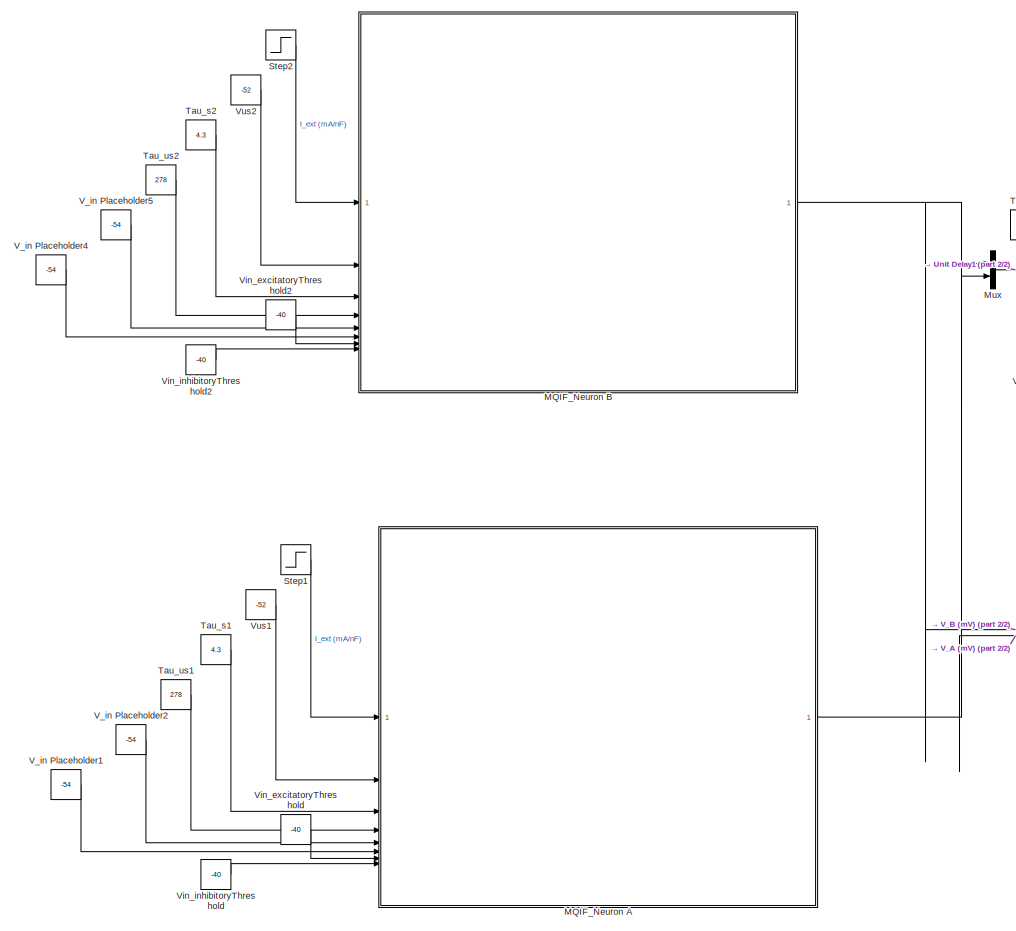
[diagram: root canvas - part 1/2, left side, full height]
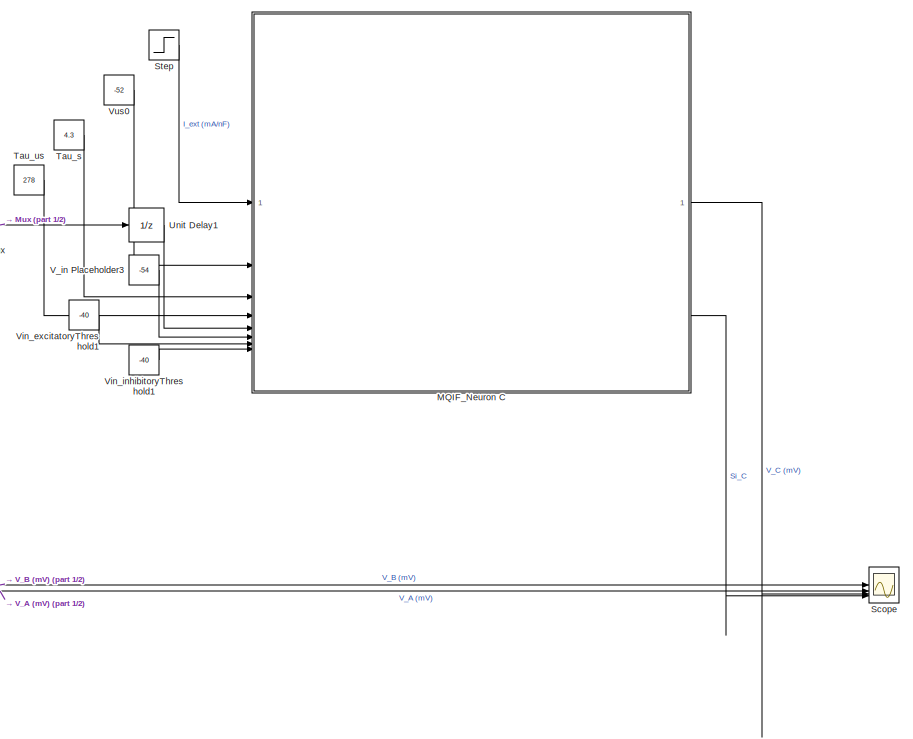
[diagram: root canvas - part 2/2, right side, full height]
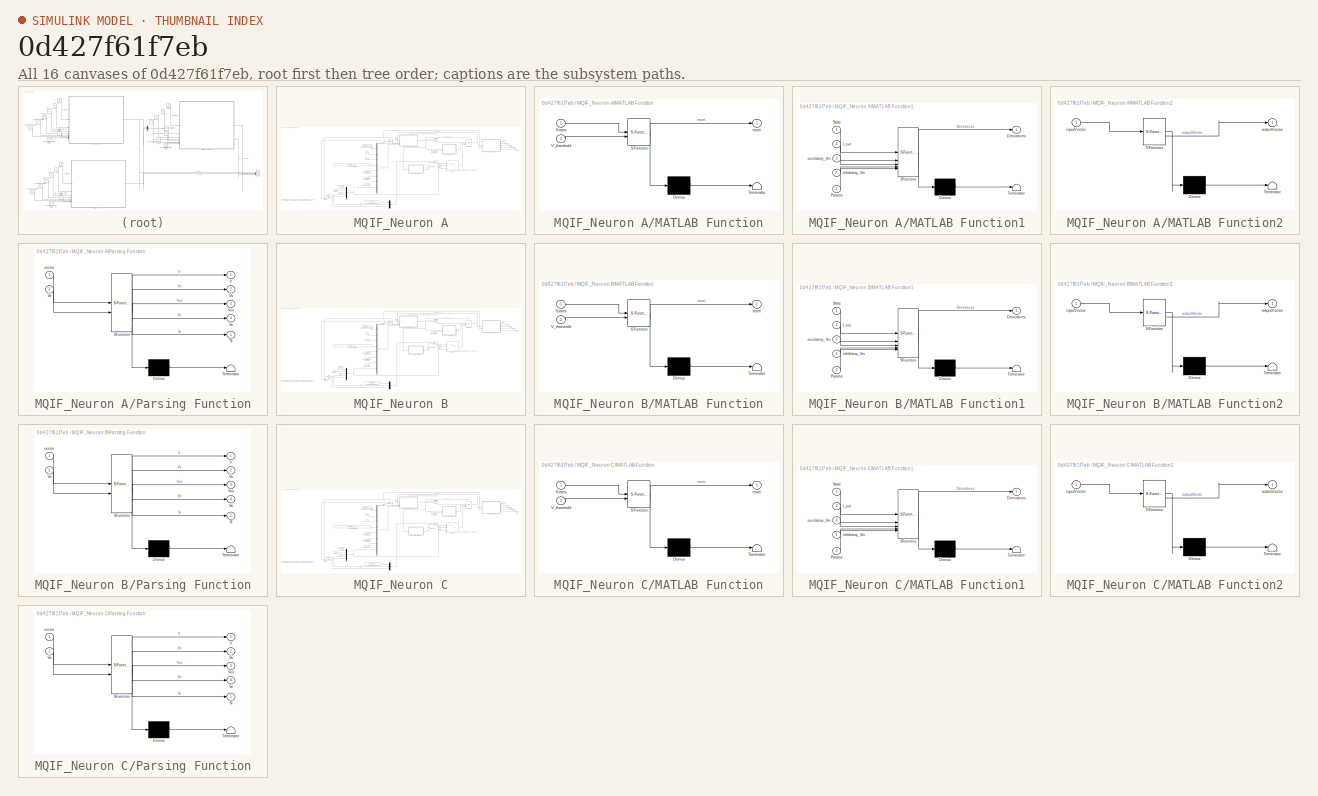
[diagram: thumbnail index - all 16 canvases of the model, root first then tree order]
MODEL slx_0d427f61f7eb
KIND model
CONFIG AbsTol = auto
CONFIG EnableMultiTasking = off
CONFIG FixedStep = 1e-3
CONFIG MaxStep = auto
CONFIG MinStep = auto
CONFIG RelTol = 1e-3
CONFIG SampleTimeConstraint = Unconstrained
CONFIG SolverName = ode4
CONFIG StartTime = 0.0
CONFIG StopTime = 10
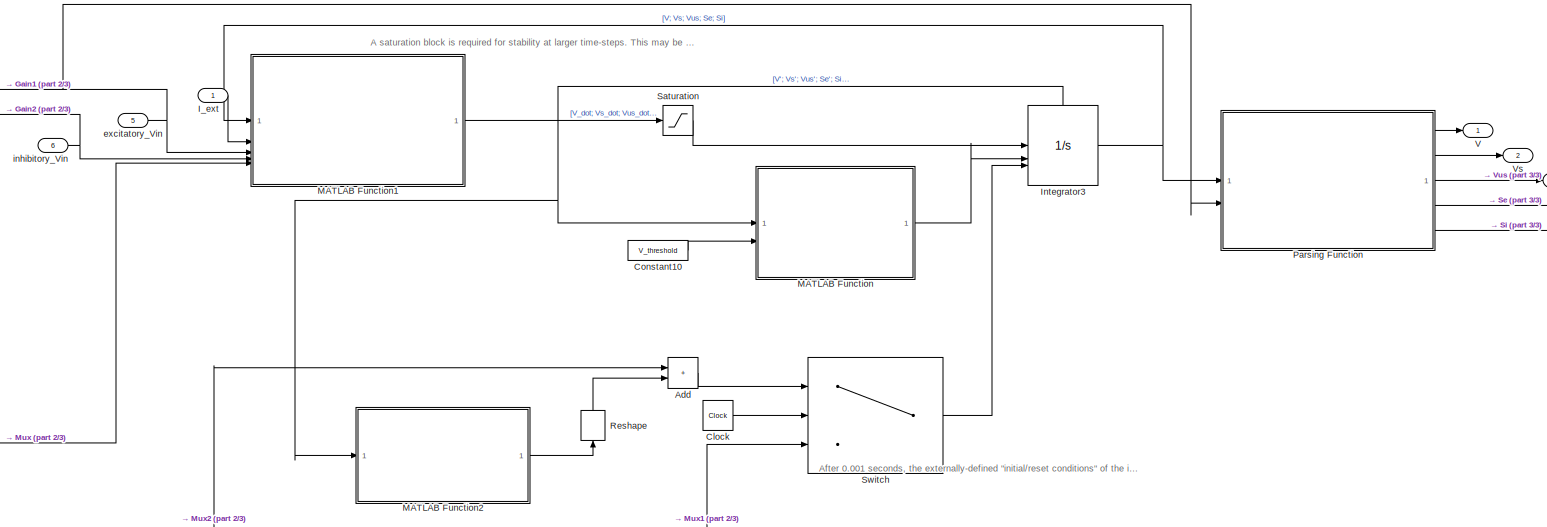
[diagram: MQIF_Neuron A - part 1/3, top right region]
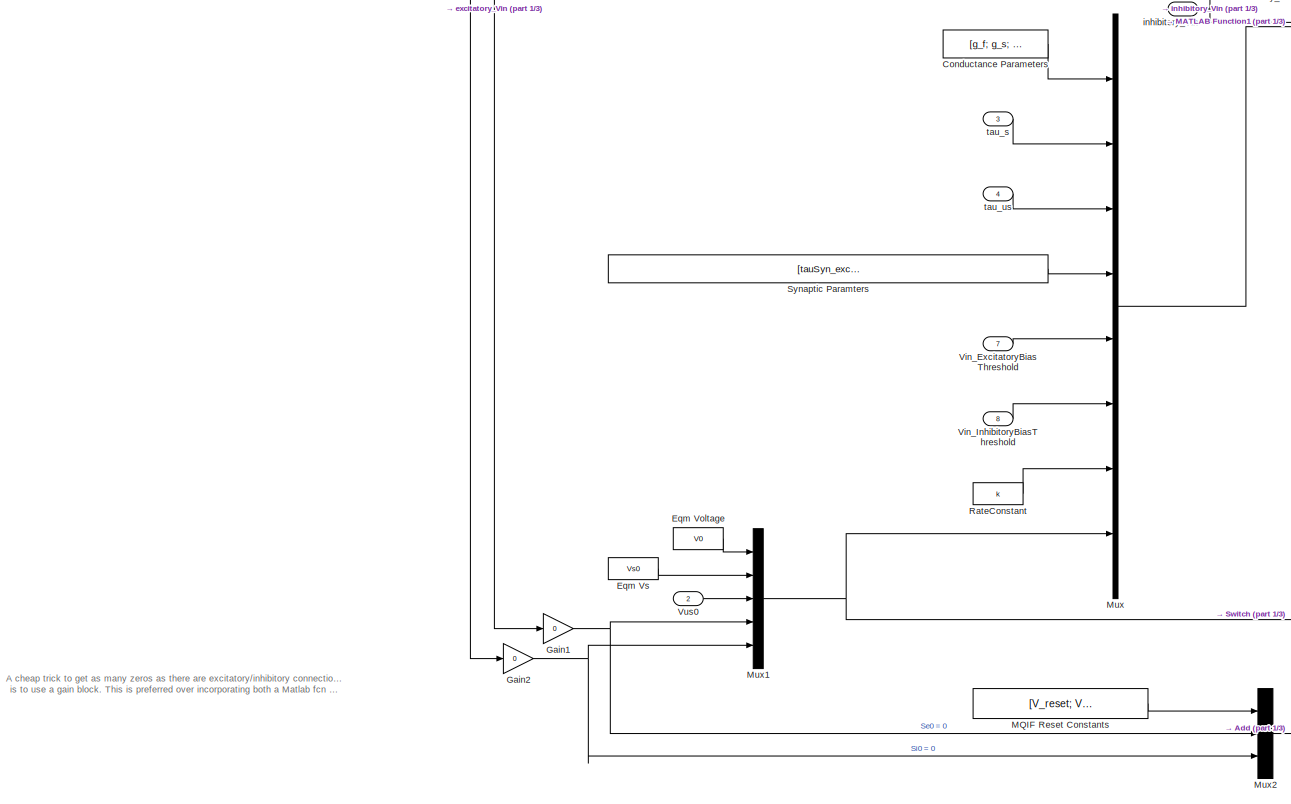
[diagram: MQIF_Neuron A - part 2/3, left side, full height]
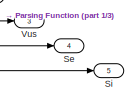
[diagram: MQIF_Neuron A - part 3/3, top right region]
BLOCK [SubSystem] MQIF_Neuron A
  TreatAsAtomicUnit = on
BLOCK [Sum] MQIF_Neuron A/Add
  IconShape = rectangular
BLOCK [Clock] MQIF_Neuron A/Clock
BLOCK [Constant] MQIF_Neuron A/Conductance Parameters
  Value = [g_f; g_s; g_us; C]
BLOCK [Constant] MQIF_Neuron A/Constant10
  Value = V_threshold
BLOCK [Constant] MQIF_Neuron A/Eqm Voltage
  Value = V0
BLOCK [Constant] MQIF_Neuron A/Eqm Vs
  Value = Vs0
BLOCK [Gain] MQIF_Neuron A/Gain1
  Gain = 0
BLOCK [Gain] MQIF_Neuron A/Gain2
  Gain = 0
BLOCK [Inport] MQIF_Neuron A/I_ext
BLOCK [Integrator] MQIF_Neuron A/Integrator3
  ExternalReset = rising
  InitialCondition = [V0 Vs0 Vus0]
  InitialConditionSource = external
  ShowStatePort = on
BLOCK [SubSystem] MQIF_Neuron A/MATLAB Function
  ErrorFcn = Stateflow.Translate.translate
  LibrarySourceBlock = simulink/User-Defined\nFunctions/MATLAB Function
  PermitHierarchicalResolution = ExplicitOnly
  SFBlockType = MATLAB Function
  TreatAsAtomicUnit = on
BLOCK [Demux] MQIF_Neuron A/MATLAB Function/ Demux 
  Outputs = 1
BLOCK [S-Function] MQIF_Neuron A/MATLAB Function/ SFunction 
  EnableBusSupport = on
  FunctionName = sf_sfun
  PortCounts = [2 2]
  SFcnIsStateOwnerBlock = off
  SFunctionDeploymentMode = off
  Tag = Stateflow S-Function 2
BLOCK [Terminator] MQIF_Neuron A/MATLAB Function/ Terminator 
BLOCK [Inport] MQIF_Neuron A/MATLAB Function/States
BLOCK [Inport] MQIF_Neuron A/MATLAB Function/V_threshold
  Port = 2
BLOCK [Outport] MQIF_Neuron A/MATLAB Function/reset
BLOCK [SubSystem] MQIF_Neuron A/MATLAB Function1
  ErrorFcn = Stateflow.Translate.translate
  LibrarySourceBlock = simulink/User-Defined\nFunctions/MATLAB Function
  PermitHierarchicalResolution = ExplicitOnly
  SFBlockType = MATLAB Function
  TreatAsAtomicUnit = on
BLOCK [Demux] MQIF_Neuron A/MATLAB Function1/ Demux 
  Outputs = 1
BLOCK [S-Function] MQIF_Neuron A/MATLAB Function1/ SFunction 
  EnableBusSupport = on
  FunctionName = sf_sfun
  PortCounts = [5 2]
  SFcnIsStateOwnerBlock = off
  SFunctionDeploymentMode = off
  Tag = Stateflow S-Function 1
BLOCK [Terminator] MQIF_Neuron A/MATLAB Function1/ Terminator 
BLOCK [Outport] MQIF_Neuron A/MATLAB Function1/Derivatives
BLOCK [Inport] MQIF_Neuron A/MATLAB Function1/I_ext
  Port = 2
BLOCK [Inport] MQIF_Neuron A/MATLAB Function1/Params
  Port = 5
BLOCK [Inport] MQIF_Neuron A/MATLAB Function1/State
BLOCK [Inport] MQIF_Neuron A/MATLAB Function1/excitatory_Vin
  Port = 3
BLOCK [Inport] MQIF_Neuron A/MATLAB Function1/inhibitory_Vin
  Port = 4
BLOCK [SubSystem] MQIF_Neuron A/MATLAB Function2
  ErrorFcn = Stateflow.Translate.translate
  LibrarySourceBlock = simulink/User-Defined\nFunctions/MATLAB Function
  PermitHierarchicalResolution = ExplicitOnly
  SFBlockType = MATLAB Function
  TreatAsAtomicUnit = on
BLOCK [Demux] MQIF_Neuron A/MATLAB Function2/ Demux 
  Outputs = 1
BLOCK [S-Function] MQIF_Neuron A/MATLAB Function2/ SFunction 
  EnableBusSupport = on
  FunctionName = sf_sfun
  PortCounts = [1 2]
  SFcnIsStateOwnerBlock = off
  SFunctionDeploymentMode = off
  Tag = Stateflow S-Function 5
BLOCK [Terminator] MQIF_Neuron A/MATLAB Function2/ Terminator 
BLOCK [Inport] MQIF_Neuron A/MATLAB Function2/inputVector
BLOCK [Outport] MQIF_Neuron A/MATLAB Function2/outputVector
BLOCK [Constant] MQIF_Neuron A/MQIF Reset Constants
  Value = [V_reset; Vs_reset; delta_Vus]
BLOCK [Mux] MQIF_Neuron A/Mux
  DisplayOption = bar
  Inputs = 8
BLOCK [Mux] MQIF_Neuron A/Mux1
  DisplayOption = bar
  Inputs = 5
BLOCK [Mux] MQIF_Neuron A/Mux2
  DisplayOption = bar
  Inputs = 3
BLOCK [SubSystem] MQIF_Neuron A/Parsing Function
  ErrorFcn = Stateflow.Translate.translate
  LibrarySourceBlock = simulink/User-Defined\nFunctions/MATLAB Function
  PermitHierarchicalResolution = ExplicitOnly
  SFBlockType = MATLAB Function
  TreatAsAtomicUnit = on
BLOCK [Demux] MQIF_Neuron A/Parsing Function/ Demux 
  Outputs = 1
BLOCK [S-Function] MQIF_Neuron A/Parsing Function/ SFunction 
  EnableBusSupport = on
  FunctionName = sf_sfun
  PortCounts = [2 6]
  SFcnIsStateOwnerBlock = off
  SFunctionDeploymentMode = off
  Tag = Stateflow S-Function 6
BLOCK [Terminator] MQIF_Neuron A/Parsing Function/ Terminator 
BLOCK [Outport] MQIF_Neuron A/Parsing Function/Se
  Port = 4
BLOCK [Outport] MQIF_Neuron A/Parsing Function/Si
  Port = 5
BLOCK [Outport] MQIF_Neuron A/Parsing Function/V
BLOCK [Inport] MQIF_Neuron A/Parsing Function/Ve
  Port = 2
BLOCK [Outport] MQIF_Neuron A/Parsing Function/Vs
  Port = 2
BLOCK [Outport] MQIF_Neuron A/Parsing Function/Vus
  Port = 3
BLOCK [Inport] MQIF_Neuron A/Parsing Function/vector
BLOCK [Constant] MQIF_Neuron A/RateConstant
  Value = k
BLOCK [Reshape] MQIF_Neuron A/Reshape
  NameLocation = right
BLOCK [Saturate] MQIF_Neuron A/Saturation
  LinearizeAsGain = off
  LowerLimit = -1e4
  UpperLimit = 1e4
  ZeroCross = off
BLOCK [Outport] MQIF_Neuron A/Se
  Port = 4
BLOCK [Outport] MQIF_Neuron A/Si
  Port = 5
BLOCK [Switch] MQIF_Neuron A/Switch
  Criteria = u2 > Threshold
  InputSameDT = off
  SaturateOnIntegerOverflow = off
  Threshold = 1e-3
BLOCK [Constant] MQIF_Neuron A/Synaptic Paramters
  Value = [tauSyn_excitatory; tauSyn_inhibitory; Ve_syn; Vi_syn; g_syn_excitatory; g_syn_inhibitory]
BLOCK [Outport] MQIF_Neuron A/V
BLOCK [Inport] MQIF_Neuron A/Vin_ExcitatoryBiasThreshold
  Port = 7
BLOCK [Inport] MQIF_Neuron A/Vin_InhibitoryBiasThreshold
  Port = 8
BLOCK [Outport] MQIF_Neuron A/Vs
  Port = 2
BLOCK [Outport] MQIF_Neuron A/Vus
  Port = 3
BLOCK [Inport] MQIF_Neuron A/Vus0
  Port = 2
BLOCK [Inport] MQIF_Neuron A/excitatory_Vin
  Port = 5
BLOCK [Inport] MQIF_Neuron A/inhibitory_Vin
  Port = 6
BLOCK [Inport] MQIF_Neuron A/tau_s
  Port = 3
BLOCK [Inport] MQIF_Neuron A/tau_us
  Port = 4
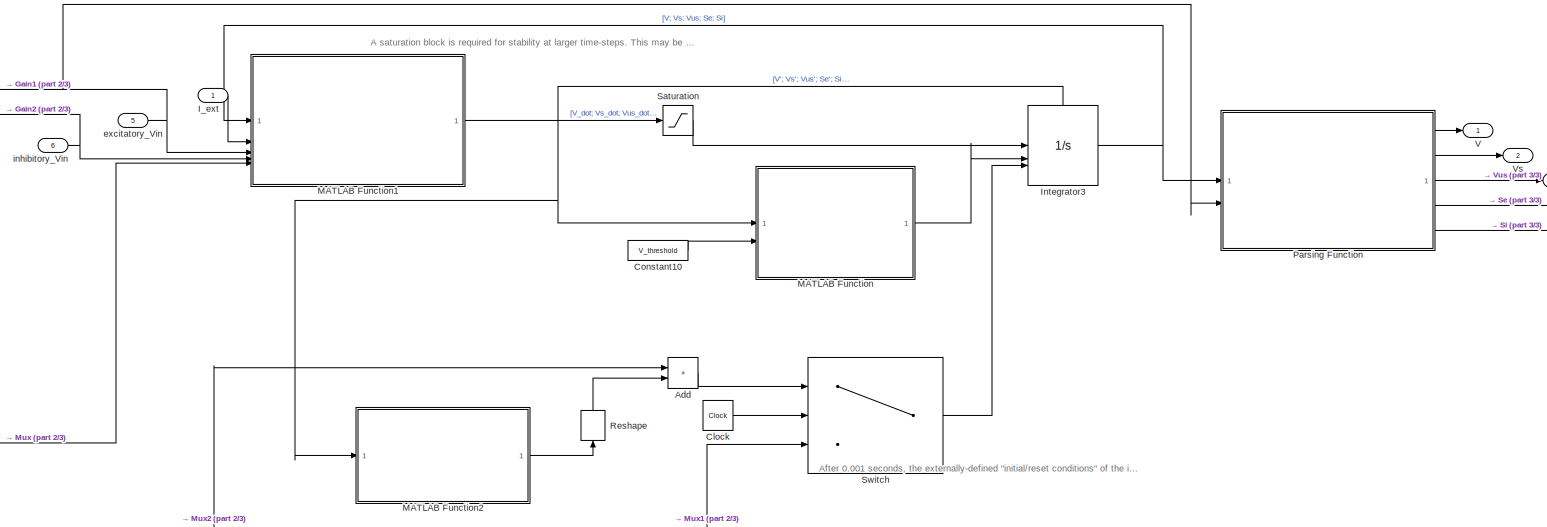
[diagram: MQIF_Neuron B - part 1/3, top right region]
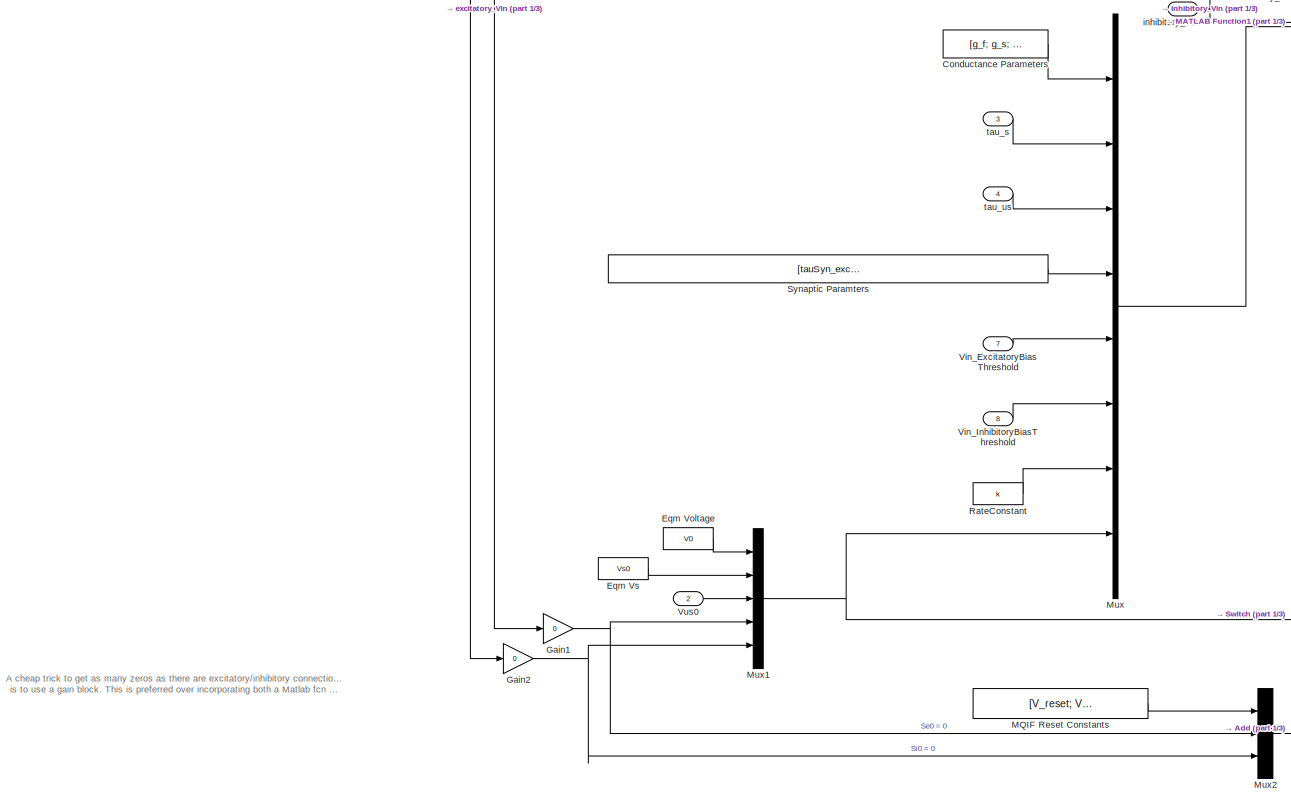
[diagram: MQIF_Neuron B - part 2/3, left side, full height]
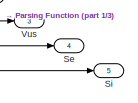
[diagram: MQIF_Neuron B - part 3/3, top right region]
BLOCK [SubSystem] MQIF_Neuron B
  TreatAsAtomicUnit = on
BLOCK [Sum] MQIF_Neuron B/Add
  IconShape = rectangular
BLOCK [Clock] MQIF_Neuron B/Clock
BLOCK [Constant] MQIF_Neuron B/Conductance Parameters
  Value = [g_f; g_s; g_us; C]
BLOCK [Constant] MQIF_Neuron B/Constant10
  Value = V_threshold
BLOCK [Constant] MQIF_Neuron B/Eqm Voltage
  Value = V0
BLOCK [Constant] MQIF_Neuron B/Eqm Vs
  Value = Vs0
BLOCK [Gain] MQIF_Neuron B/Gain1
  Gain = 0
BLOCK [Gain] MQIF_Neuron B/Gain2
  Gain = 0
BLOCK [Inport] MQIF_Neuron B/I_ext
BLOCK [Integrator] MQIF_Neuron B/Integrator3
  ExternalReset = rising
  InitialCondition = [V0 Vs0 Vus0]
  InitialConditionSource = external
  ShowStatePort = on
BLOCK [SubSystem] MQIF_Neuron B/MATLAB Function
  ErrorFcn = Stateflow.Translate.translate
  LibrarySourceBlock = simulink/User-Defined\nFunctions/MATLAB Function
  PermitHierarchicalResolution = ExplicitOnly
  SFBlockType = MATLAB Function
  TreatAsAtomicUnit = on
BLOCK [Demux] MQIF_Neuron B/MATLAB Function/ Demux 
  Outputs = 1
BLOCK [S-Function] MQIF_Neuron B/MATLAB Function/ SFunction 
  EnableBusSupport = on
  FunctionName = sf_sfun
  PortCounts = [2 2]
  SFcnIsStateOwnerBlock = off
  SFunctionDeploymentMode = off
  Tag = Stateflow S-Function 9
BLOCK [Terminator] MQIF_Neuron B/MATLAB Function/ Terminator 
BLOCK [Inport] MQIF_Neuron B/MATLAB Function/States
BLOCK [Inport] MQIF_Neuron B/MATLAB Function/V_threshold
  Port = 2
BLOCK [Outport] MQIF_Neuron B/MATLAB Function/reset
BLOCK [SubSystem] MQIF_Neuron B/MATLAB Function1
  ErrorFcn = Stateflow.Translate.translate
  LibrarySourceBlock = simulink/User-Defined\nFunctions/MATLAB Function
  PermitHierarchicalResolution = ExplicitOnly
  SFBlockType = MATLAB Function
  TreatAsAtomicUnit = on
BLOCK [Demux] MQIF_Neuron B/MATLAB Function1/ Demux 
  Outputs = 1
BLOCK [S-Function] MQIF_Neuron B/MATLAB Function1/ SFunction 
  EnableBusSupport = on
  FunctionName = sf_sfun
  PortCounts = [5 2]
  SFcnIsStateOwnerBlock = off
  SFunctionDeploymentMode = off
  Tag = Stateflow S-Function 10
BLOCK [Terminator] MQIF_Neuron B/MATLAB Function1/ Terminator 
BLOCK [Outport] MQIF_Neuron B/MATLAB Function1/Derivatives
BLOCK [Inport] MQIF_Neuron B/MATLAB Function1/I_ext
  Port = 2
BLOCK [Inport] MQIF_Neuron B/MATLAB Function1/Params
  Port = 5
BLOCK [Inport] MQIF_Neuron B/MATLAB Function1/State
BLOCK [Inport] MQIF_Neuron B/MATLAB Function1/excitatory_Vin
  Port = 3
BLOCK [Inport] MQIF_Neuron B/MATLAB Function1/inhibitory_Vin
  Port = 4
BLOCK [SubSystem] MQIF_Neuron B/MATLAB Function2
  ErrorFcn = Stateflow.Translate.translate
  LibrarySourceBlock = simulink/User-Defined\nFunctions/MATLAB Function
  PermitHierarchicalResolution = ExplicitOnly
  SFBlockType = MATLAB Function
  TreatAsAtomicUnit = on
BLOCK [Demux] MQIF_Neuron B/MATLAB Function2/ Demux 
  Outputs = 1
BLOCK [S-Function] MQIF_Neuron B/MATLAB Function2/ SFunction 
  EnableBusSupport = on
  FunctionName = sf_sfun
  PortCounts = [1 2]
  SFcnIsStateOwnerBlock = off
  SFunctionDeploymentMode = off
  Tag = Stateflow S-Function 11
BLOCK [Terminator] MQIF_Neuron B/MATLAB Function2/ Terminator 
BLOCK [Inport] MQIF_Neuron B/MATLAB Function2/inputVector
BLOCK [Outport] MQIF_Neuron B/MATLAB Function2/outputVector
BLOCK [Constant] MQIF_Neuron B/MQIF Reset Constants
  Value = [V_reset; Vs_reset; delta_Vus]
BLOCK [Mux] MQIF_Neuron B/Mux
  DisplayOption = bar
  Inputs = 8
BLOCK [Mux] MQIF_Neuron B/Mux1
  DisplayOption = bar
  Inputs = 5
BLOCK [Mux] MQIF_Neuron B/Mux2
  DisplayOption = bar
  Inputs = 3
BLOCK [SubSystem] MQIF_Neuron B/Parsing Function
  ErrorFcn = Stateflow.Translate.translate
  LibrarySourceBlock = simulink/User-Defined\nFunctions/MATLAB Function
  PermitHierarchicalResolution = ExplicitOnly
  SFBlockType = MATLAB Function
  TreatAsAtomicUnit = on
BLOCK [Demux] MQIF_Neuron B/Parsing Function/ Demux 
  Outputs = 1
BLOCK [S-Function] MQIF_Neuron B/Parsing Function/ SFunction 
  EnableBusSupport = on
  FunctionName = sf_sfun
  PortCounts = [2 6]
  SFcnIsStateOwnerBlock = off
  SFunctionDeploymentMode = off
  Tag = Stateflow S-Function 12
BLOCK [Terminator] MQIF_Neuron B/Parsing Function/ Terminator 
BLOCK [Outport] MQIF_Neuron B/Parsing Function/Se
  Port = 4
BLOCK [Outport] MQIF_Neuron B/Parsing Function/Si
  Port = 5
BLOCK [Outport] MQIF_Neuron B/Parsing Function/V
BLOCK [Inport] MQIF_Neuron B/Parsing Function/Ve
  Port = 2
BLOCK [Outport] MQIF_Neuron B/Parsing Function/Vs
  Port = 2
BLOCK [Outport] MQIF_Neuron B/Parsing Function/Vus
  Port = 3
BLOCK [Inport] MQIF_Neuron B/Parsing Function/vector
BLOCK [Constant] MQIF_Neuron B/RateConstant
  Value = k
BLOCK [Reshape] MQIF_Neuron B/Reshape
  NameLocation = right
BLOCK [Saturate] MQIF_Neuron B/Saturation
  LinearizeAsGain = off
  LowerLimit = -1e4
  UpperLimit = 1e4
  ZeroCross = off
BLOCK [Outport] MQIF_Neuron B/Se
  Port = 4
BLOCK [Outport] MQIF_Neuron B/Si
  Port = 5
BLOCK [Switch] MQIF_Neuron B/Switch
  Criteria = u2 > Threshold
  InputSameDT = off
  SaturateOnIntegerOverflow = off
  Threshold = 1e-3
BLOCK [Constant] MQIF_Neuron B/Synaptic Paramters
  Value = [tauSyn_excitatory; tauSyn_inhibitory; Ve_syn; Vi_syn; g_syn_excitatory; g_syn_inhibitory]
BLOCK [Outport] MQIF_Neuron B/V
BLOCK [Inport] MQIF_Neuron B/Vin_ExcitatoryBiasThreshold
  Port = 7
BLOCK [Inport] MQIF_Neuron B/Vin_InhibitoryBiasThreshold
  Port = 8
BLOCK [Outport] MQIF_Neuron B/Vs
  Port = 2
BLOCK [Outport] MQIF_Neuron B/Vus
  Port = 3
BLOCK [Inport] MQIF_Neuron B/Vus0
  Port = 2
BLOCK [Inport] MQIF_Neuron B/excitatory_Vin
  Port = 5
BLOCK [Inport] MQIF_Neuron B/inhibitory_Vin
  Port = 6
BLOCK [Inport] MQIF_Neuron B/tau_s
  Port = 3
BLOCK [Inport] MQIF_Neuron B/tau_us
  Port = 4
BLOCK [SubSystem] MQIF_Neuron C
  TreatAsAtomicUnit = on
BLOCK [Sum] MQIF_Neuron C/Add
  IconShape = rectangular
BLOCK [Clock] MQIF_Neuron C/Clock
BLOCK [Constant] MQIF_Neuron C/Conductance Parameters
  Value = [g_f; g_s; g_us; C]
BLOCK [Constant] MQIF_Neuron C/Constant10
  Value = V_threshold
BLOCK [Constant] MQIF_Neuron C/Eqm Voltage
  Value = V0
BLOCK [Constant] MQIF_Neuron C/Eqm Vs
  Value = Vs0
BLOCK [Gain] MQIF_Neuron C/Gain1
  Gain = 0
BLOCK [Gain] MQIF_Neuron C/Gain2
  Gain = 0
BLOCK [Inport] MQIF_Neuron C/I_ext
BLOCK [Integrator] MQIF_Neuron C/Integrator3
  ExternalReset = rising
  InitialCondition = [V0 Vs0 Vus0]
  InitialConditionSource = external
  ShowStatePort = on
BLOCK [SubSystem] MQIF_Neuron C/MATLAB Function
  ErrorFcn = Stateflow.Translate.translate
  LibrarySourceBlock = simulink/User-Defined\nFunctions/MATLAB Function
  PermitHierarchicalResolution = ExplicitOnly
  SFBlockType = MATLAB Function
  TreatAsAtomicUnit = on
BLOCK [Demux] MQIF_Neuron C/MATLAB Function/ Demux 
  Outputs = 1
BLOCK [S-Function] MQIF_Neuron C/MATLAB Function/ SFunction 
  EnableBusSupport = on
  FunctionName = sf_sfun
  PortCounts = [2 2]
  SFcnIsStateOwnerBlock = off
  SFunctionDeploymentMode = off
  Tag = Stateflow S-Function 3
BLOCK [Terminator] MQIF_Neuron C/MATLAB Function/ Terminator 
BLOCK [Inport] MQIF_Neuron C/MATLAB Function/States
BLOCK [Inport] MQIF_Neuron C/MATLAB Function/V_threshold
  Port = 2
BLOCK [Outport] MQIF_Neuron C/MATLAB Function/reset
BLOCK [SubSystem] MQIF_Neuron C/MATLAB Function1
  ErrorFcn = Stateflow.Translate.translate
  LibrarySourceBlock = simulink/User-Defined\nFunctions/MATLAB Function
  PermitHierarchicalResolution = ExplicitOnly
  SFBlockType = MATLAB Function
  TreatAsAtomicUnit = on
BLOCK [Demux] MQIF_Neuron C/MATLAB Function1/ Demux 
  Outputs = 1
BLOCK [S-Function] MQIF_Neuron C/MATLAB Function1/ SFunction 
  EnableBusSupport = on
  FunctionName = sf_sfun
  PortCounts = [5 2]
  SFcnIsStateOwnerBlock = off
  SFunctionDeploymentMode = off
  Tag = Stateflow S-Function 4
BLOCK [Terminator] MQIF_Neuron C/MATLAB Function1/ Terminator 
BLOCK [Outport] MQIF_Neuron C/MATLAB Function1/Derivatives
BLOCK [Inport] MQIF_Neuron C/MATLAB Function1/I_ext
  Port = 2
BLOCK [Inport] MQIF_Neuron C/MATLAB Function1/Params
  Port = 5
BLOCK [Inport] MQIF_Neuron C/MATLAB Function1/State
BLOCK [Inport] MQIF_Neuron C/MATLAB Function1/excitatory_Vin
  Port = 3
BLOCK [Inport] MQIF_Neuron C/MATLAB Function1/inhibitory_Vin
  Port = 4
BLOCK [SubSystem] MQIF_Neuron C/MATLAB Function2
  ErrorFcn = Stateflow.Translate.translate
  LibrarySourceBlock = simulink/User-Defined\nFunctions/MATLAB Function
  PermitHierarchicalResolution = ExplicitOnly
  SFBlockType = MATLAB Function
  TreatAsAtomicUnit = on
BLOCK [Demux] MQIF_Neuron C/MATLAB Function2/ Demux 
  Outputs = 1
BLOCK [S-Function] MQIF_Neuron C/MATLAB Function2/ SFunction 
  EnableBusSupport = on
  FunctionName = sf_sfun
  PortCounts = [1 2]
  SFcnIsStateOwnerBlock = off
  SFunctionDeploymentMode = off
  Tag = Stateflow S-Function 7
BLOCK [Terminator] MQIF_Neuron C/MATLAB Function2/ Terminator 
BLOCK [Inport] MQIF_Neuron C/MATLAB Function2/inputVector
BLOCK [Outport] MQIF_Neuron C/MATLAB Function2/outputVector
BLOCK [Constant] MQIF_Neuron C/MQIF Reset Constants
  Value = [V_reset; Vs_reset; delta_Vus]
BLOCK [Mux] MQIF_Neuron C/Mux
  DisplayOption = bar
  Inputs = 8
BLOCK [Mux] MQIF_Neuron C/Mux1
  DisplayOption = bar
  Inputs = 5
BLOCK [Mux] MQIF_Neuron C/Mux2
  DisplayOption = bar
  Inputs = 3
BLOCK [SubSystem] MQIF_Neuron C/Parsing Function
  ErrorFcn = Stateflow.Translate.translate
  LibrarySourceBlock = simulink/User-Defined\nFunctions/MATLAB Function
  PermitHierarchicalResolution = ExplicitOnly
  SFBlockType = MATLAB Function
  TreatAsAtomicUnit = on
BLOCK [Demux] MQIF_Neuron C/Parsing Function/ Demux 
  Outputs = 1
BLOCK [S-Function] MQIF_Neuron C/Parsing Function/ SFunction 
  EnableBusSupport = on
  FunctionName = sf_sfun
  PortCounts = [2 6]
  SFcnIsStateOwnerBlock = off
  SFunctionDeploymentMode = off
  Tag = Stateflow S-Function 8
BLOCK [Terminator] MQIF_Neuron C/Parsing Function/ Terminator 
BLOCK [Outport] MQIF_Neuron C/Parsing Function/Se
  Port = 4
BLOCK [Outport] MQIF_Neuron C/Parsing Function/Si
  Port = 5
BLOCK [Outport] MQIF_Neuron C/Parsing Function/V
BLOCK [Inport] MQIF_Neuron C/Parsing Function/Ve
  Port = 2
BLOCK [Outport] MQIF_Neuron C/Parsing Function/Vs
  Port = 2
BLOCK [Outport] MQIF_Neuron C/Parsing Function/Vus
  Port = 3
BLOCK [Inport] MQIF_Neuron C/Parsing Function/vector
BLOCK [Constant] MQIF_Neuron C/RateConstant
  Value = k
BLOCK [Reshape] MQIF_Neuron C/Reshape
  NameLocation = right
BLOCK [Saturate] MQIF_Neuron C/Saturation
  LinearizeAsGain = off
  LowerLimit = -1e4
  UpperLimit = 1e4
  ZeroCross = off
BLOCK [Outport] MQIF_Neuron C/Se
  Port = 4
BLOCK [Outport] MQIF_Neuron C/Si
  Port = 5
BLOCK [Switch] MQIF_Neuron C/Switch
  Criteria = u2 > Threshold
  InputSameDT = off
  SaturateOnIntegerOverflow = off
  Threshold = 1e-3
BLOCK [Constant] MQIF_Neuron C/Synaptic Paramters
  Value = [tauSyn_excitatory; tauSyn_inhibitory; Ve_syn; Vi_syn; g_syn_excitatory; g_syn_inhibitory]
BLOCK [Outport] MQIF_Neuron C/V
BLOCK [Inport] MQIF_Neuron C/Vin_ExcitatoryBiasThreshold
  Port = 7
BLOCK [Inport] MQIF_Neuron C/Vin_InhibitoryBiasThreshold
  Port = 8
BLOCK [Outport] MQIF_Neuron C/Vs
  Port = 2
BLOCK [Outport] MQIF_Neuron C/Vus
  Port = 3
BLOCK [Inport] MQIF_Neuron C/Vus0
  Port = 2
BLOCK [Inport] MQIF_Neuron C/excitatory_Vin
  Port = 5
BLOCK [Inport] MQIF_Neuron C/inhibitory_Vin
  Port = 6
BLOCK [Inport] MQIF_Neuron C/tau_s
  Port = 3
BLOCK [Inport] MQIF_Neuron C/tau_us
  Port = 4
BLOCK [Mux] Mux
  DisplayOption = bar
  Inputs = 2
BLOCK [Scope] Scope
  Floating = off
  NumInputPorts = 4
  ScopeSpecificationString = Simulink.scopes.TimeScopeBlockCfg('CurrentConfiguration', extmgr.ConfigurationSet(extmgr.Configuration('Core','General UI',true),extmgr.Configuration('Core','Source UI',true),extmgr.Configuration('Sources','WiredSimulink',true),extmgr.Configuration('Visuals','Time Domain',true,'SerializedDisplays',{struct('MinYLimReal','-94.36815','MaxYLimReal','32.64666','YLabelReal','','MinYLimMag','0.00000','Ma...<+3519ch>
BLOCK [Step] Step
  After = 0
  SampleTime = 0
  Time = 5
BLOCK [Step] Step1
  After = 5
  SampleTime = 0
  Time = 2
BLOCK [Step] Step2
  After = 5
  SampleTime = 0
  Time = 3
BLOCK [Constant] Tau_s
  Value = 4.3
BLOCK [Constant] Tau_s1
  Value = 4.3
BLOCK [Constant] Tau_s2
  Value = 4.3
BLOCK [Constant] Tau_us
  Value = 278
BLOCK [Constant] Tau_us1
  Value = 278
BLOCK [Constant] Tau_us2
  Value = 278
BLOCK [UnitDelay] Unit Delay1
  HasFrameUpgradeWarning = on
  InitialCondition = -54
  SampleTime = -1
BLOCK [Constant] V_in Placeholder1
  Value = -54
BLOCK [Constant] V_in Placeholder2
  Value = -54
BLOCK [Constant] V_in Placeholder3
  Value = -54
BLOCK [Constant] V_in Placeholder4
  Value = -54
BLOCK [Constant] V_in Placeholder5
  Value = -54
BLOCK [Constant] Vin_excitatoryThreshold
  Value = -40
BLOCK [Constant] Vin_excitatoryThreshold1
  Value = -40
BLOCK [Constant] Vin_excitatoryThreshold2
  Value = -40
BLOCK [Constant] Vin_inhibitoryThreshold
  Value = -40
BLOCK [Constant] Vin_inhibitoryThreshold1
  Value = -40
BLOCK [Constant] Vin_inhibitoryThreshold2
  Value = -40
BLOCK [Constant] Vus0
  Value = -52
BLOCK [Constant] Vus1
  Value = -52
BLOCK [Constant] Vus2
  Value = -52
ANNOTATION MQIF_Neuron A: A cheap trick to get as many zeros as there are excitatory/inhibitory connections is to use a gain block. This is preferred over incorporating both a Matlab fcn block and reshape block for the sole purpose of using the "numel()" function
ANNOTATION MQIF_Neuron A: A saturation block is required for stability at larger time-steps. This may be required for hardware flashing, e.g. the VEX V5 Brain cannot handle a time-step smaller than 0.001s.
ANNOTATION MQIF_Neuron A: After 0.001 seconds, the externally-defined "initial/reset conditions" of the integrator block switch from the actual initial conditions, (V0, Vs0, Vus0, Se0, Si0) to the reset conditions described in the MQIF model.
ANNOTATION MQIF_Neuron B: A cheap trick to get as many zeros as there are excitatory/inhibitory connections is to use a gain block. This is preferred over incorporating both a Matlab fcn block and reshape block for the sole purpose of using the "numel()" function
ANNOTATION MQIF_Neuron B: A saturation block is required for stability at larger time-steps. This may be required for hardware flashing, e.g. the VEX V5 Brain cannot handle a time-step smaller than 0.001s.
ANNOTATION MQIF_Neuron B: After 0.001 seconds, the externally-defined "initial/reset conditions" of the integrator block switch from the actual initial conditions, (V0, Vs0, Vus0, Se0, Si0) to the reset conditions described in the MQIF model.
ANNOTATION MQIF_Neuron C: A cheap trick to get as many zeros as there are excitatory/inhibitory connections is to use a gain block. This is preferred over incorporating both a Matlab fcn block and reshape block for the sole purpose of using the "numel()" function
ANNOTATION MQIF_Neuron C: A saturation block is required for stability at larger time-steps. This may be required for hardware flashing, e.g. the VEX V5 Brain cannot handle a time-step smaller than 0.001s.
ANNOTATION MQIF_Neuron C: After 0.001 seconds, the externally-defined "initial/reset conditions" of the integrator block switch from the actual initial conditions, (V0, Vs0, Vus0, Se0, Si0) to the reset conditions described in the MQIF model.
LINE MQIF_Neuron A/Add:1 -> MQIF_Neuron A/Switch:1
LINE MQIF_Neuron A/Clock:1 -> MQIF_Neuron A/Switch:2
LINE MQIF_Neuron A/Conductance Parameters:1 -> MQIF_Neuron A/Mux:1
LINE MQIF_Neuron A/Constant10:1 -> MQIF_Neuron A/MATLAB Function:2
LINE MQIF_Neuron A/Eqm Voltage:1 -> MQIF_Neuron A/Mux1:1
LINE MQIF_Neuron A/Eqm Vs:1 -> MQIF_Neuron A/Mux1:2
NET MQIF_Neuron A/Gain1:1 -> MQIF_Neuron A/Mux1:4, MQIF_Neuron A/Mux2:2
NET MQIF_Neuron A/Gain2:1 -> MQIF_Neuron A/Mux1:5, MQIF_Neuron A/Mux2:3
LINE MQIF_Neuron A/I_ext:1 -> MQIF_Neuron A/MATLAB Function1:2
NET MQIF_Neuron A/Integrator3:1 -> MQIF_Neuron A/MATLAB Function1:1, MQIF_Neuron A/Parsing Function:1
NET MQIF_Neuron A/Integrator3:state -> MQIF_Neuron A/MATLAB Function2:1, MQIF_Neuron A/MATLAB Function:1
LINE MQIF_Neuron A/MATLAB Function1:1 -> MQIF_Neuron A/Saturation:1
LINE MQIF_Neuron A/MATLAB Function2:1 -> MQIF_Neuron A/Reshape:1
LINE MQIF_Neuron A/MATLAB Function:1 -> MQIF_Neuron A/Integrator3:2
LINE MQIF_Neuron A/MQIF Reset Constants:1 -> MQIF_Neuron A/Mux2:1
NET MQIF_Neuron A/Mux1:1 -> MQIF_Neuron A/Mux:8, MQIF_Neuron A/Switch:3
LINE MQIF_Neuron A/Mux2:1 -> MQIF_Neuron A/Add:1
LINE MQIF_Neuron A/Mux:1 -> MQIF_Neuron A/MATLAB Function1:5
LINE MQIF_Neuron A/Parsing Function:1 -> MQIF_Neuron A/V:1
LINE MQIF_Neuron A/Parsing Function:2 -> MQIF_Neuron A/Vs:1
LINE MQIF_Neuron A/Parsing Function:3 -> MQIF_Neuron A/Vus:1
LINE MQIF_Neuron A/Parsing Function:4 -> MQIF_Neuron A/Se:1
LINE MQIF_Neuron A/Parsing Function:5 -> MQIF_Neuron A/Si:1
LINE MQIF_Neuron A/RateConstant:1 -> MQIF_Neuron A/Mux:7
LINE MQIF_Neuron A/Reshape:1 -> MQIF_Neuron A/Add:2
LINE MQIF_Neuron A/Saturation:1 -> MQIF_Neuron A/Integrator3:1
LINE MQIF_Neuron A/Switch:1 -> MQIF_Neuron A/Integrator3:3
LINE MQIF_Neuron A/Synaptic Paramters:1 -> MQIF_Neuron A/Mux:4
LINE MQIF_Neuron A/Vin_ExcitatoryBiasThreshold:1 -> MQIF_Neuron A/Mux:5
LINE MQIF_Neuron A/Vin_InhibitoryBiasThreshold:1 -> MQIF_Neuron A/Mux:6
LINE MQIF_Neuron A/Vus0:1 -> MQIF_Neuron A/Mux1:3
NET MQIF_Neuron A/excitatory_Vin:1 -> MQIF_Neuron A/Gain1:1, MQIF_Neuron A/MATLAB Function1:3, MQIF_Neuron A/Parsing Function:2
NET MQIF_Neuron A/inhibitory_Vin:1 -> MQIF_Neuron A/Gain2:1, MQIF_Neuron A/MATLAB Function1:4
LINE MQIF_Neuron A/tau_s:1 -> MQIF_Neuron A/Mux:2
LINE MQIF_Neuron A/tau_us:1 -> MQIF_Neuron A/Mux:3
NET MQIF_Neuron A:1 -> Mux:2, Scope:2
LINE MQIF_Neuron B/Add:1 -> MQIF_Neuron B/Switch:1
LINE MQIF_Neuron B/Clock:1 -> MQIF_Neuron B/Switch:2
LINE MQIF_Neuron B/Conductance Parameters:1 -> MQIF_Neuron B/Mux:1
LINE MQIF_Neuron B/Constant10:1 -> MQIF_Neuron B/MATLAB Function:2
LINE MQIF_Neuron B/Eqm Voltage:1 -> MQIF_Neuron B/Mux1:1
LINE MQIF_Neuron B/Eqm Vs:1 -> MQIF_Neuron B/Mux1:2
NET MQIF_Neuron B/Gain1:1 -> MQIF_Neuron B/Mux1:4, MQIF_Neuron B/Mux2:2
NET MQIF_Neuron B/Gain2:1 -> MQIF_Neuron B/Mux1:5, MQIF_Neuron B/Mux2:3
LINE MQIF_Neuron B/I_ext:1 -> MQIF_Neuron B/MATLAB Function1:2
NET MQIF_Neuron B/Integrator3:1 -> MQIF_Neuron B/MATLAB Function1:1, MQIF_Neuron B/Parsing Function:1
NET MQIF_Neuron B/Integrator3:state -> MQIF_Neuron B/MATLAB Function2:1, MQIF_Neuron B/MATLAB Function:1
LINE MQIF_Neuron B/MATLAB Function1:1 -> MQIF_Neuron B/Saturation:1
LINE MQIF_Neuron B/MATLAB Function2:1 -> MQIF_Neuron B/Reshape:1
LINE MQIF_Neuron B/MATLAB Function:1 -> MQIF_Neuron B/Integrator3:2
LINE MQIF_Neuron B/MQIF Reset Constants:1 -> MQIF_Neuron B/Mux2:1
NET MQIF_Neuron B/Mux1:1 -> MQIF_Neuron B/Mux:8, MQIF_Neuron B/Switch:3
LINE MQIF_Neuron B/Mux2:1 -> MQIF_Neuron B/Add:1
LINE MQIF_Neuron B/Mux:1 -> MQIF_Neuron B/MATLAB Function1:5
LINE MQIF_Neuron B/Parsing Function:1 -> MQIF_Neuron B/V:1
LINE MQIF_Neuron B/Parsing Function:2 -> MQIF_Neuron B/Vs:1
LINE MQIF_Neuron B/Parsing Function:3 -> MQIF_Neuron B/Vus:1
LINE MQIF_Neuron B/Parsing Function:4 -> MQIF_Neuron B/Se:1
LINE MQIF_Neuron B/Parsing Function:5 -> MQIF_Neuron B/Si:1
LINE MQIF_Neuron B/RateConstant:1 -> MQIF_Neuron B/Mux:7
LINE MQIF_Neuron B/Reshape:1 -> MQIF_Neuron B/Add:2
LINE MQIF_Neuron B/Saturation:1 -> MQIF_Neuron B/Integrator3:1
LINE MQIF_Neuron B/Switch:1 -> MQIF_Neuron B/Integrator3:3
LINE MQIF_Neuron B/Synaptic Paramters:1 -> MQIF_Neuron B/Mux:4
LINE MQIF_Neuron B/Vin_ExcitatoryBiasThreshold:1 -> MQIF_Neuron B/Mux:5
LINE MQIF_Neuron B/Vin_InhibitoryBiasThreshold:1 -> MQIF_Neuron B/Mux:6
LINE MQIF_Neuron B/Vus0:1 -> MQIF_Neuron B/Mux1:3
NET MQIF_Neuron B/excitatory_Vin:1 -> MQIF_Neuron B/Gain1:1, MQIF_Neuron B/MATLAB Function1:3, MQIF_Neuron B/Parsing Function:2
NET MQIF_Neuron B/inhibitory_Vin:1 -> MQIF_Neuron B/Gain2:1, MQIF_Neuron B/MATLAB Function1:4
LINE MQIF_Neuron B/tau_s:1 -> MQIF_Neuron B/Mux:2
LINE MQIF_Neuron B/tau_us:1 -> MQIF_Neuron B/Mux:3
NET MQIF_Neuron B:1 -> Mux:1, Scope:1
LINE MQIF_Neuron C/Add:1 -> MQIF_Neuron C/Switch:1
LINE MQIF_Neuron C/Clock:1 -> MQIF_Neuron C/Switch:2
LINE MQIF_Neuron C/Conductance Parameters:1 -> MQIF_Neuron C/Mux:1
LINE MQIF_Neuron C/Constant10:1 -> MQIF_Neuron C/MATLAB Function:2
LINE MQIF_Neuron C/Eqm Voltage:1 -> MQIF_Neuron C/Mux1:1
LINE MQIF_Neuron C/Eqm Vs:1 -> MQIF_Neuron C/Mux1:2
NET MQIF_Neuron C/Gain1:1 -> MQIF_Neuron C/Mux1:4, MQIF_Neuron C/Mux2:2
NET MQIF_Neuron C/Gain2:1 -> MQIF_Neuron C/Mux1:5, MQIF_Neuron C/Mux2:3
LINE MQIF_Neuron C/I_ext:1 -> MQIF_Neuron C/MATLAB Function1:2
NET MQIF_Neuron C/Integrator3:1 -> MQIF_Neuron C/MATLAB Function1:1, MQIF_Neuron C/Parsing Function:1
NET MQIF_Neuron C/Integrator3:state -> MQIF_Neuron C/MATLAB Function2:1, MQIF_Neuron C/MATLAB Function:1
LINE MQIF_Neuron C/MATLAB Function1:1 -> MQIF_Neuron C/Saturation:1
LINE MQIF_Neuron C/MATLAB Function2:1 -> MQIF_Neuron C/Reshape:1
LINE MQIF_Neuron C/MATLAB Function:1 -> MQIF_Neuron C/Integrator3:2
LINE MQIF_Neuron C/MQIF Reset Constants:1 -> MQIF_Neuron C/Mux2:1
NET MQIF_Neuron C/Mux1:1 -> MQIF_Neuron C/Mux:8, MQIF_Neuron C/Switch:3
LINE MQIF_Neuron C/Mux2:1 -> MQIF_Neuron C/Add:1
LINE MQIF_Neuron C/Mux:1 -> MQIF_Neuron C/MATLAB Function1:5
LINE MQIF_Neuron C/Parsing Function:1 -> MQIF_Neuron C/V:1
LINE MQIF_Neuron C/Parsing Function:2 -> MQIF_Neuron C/Vs:1
LINE MQIF_Neuron C/Parsing Function:3 -> MQIF_Neuron C/Vus:1
LINE MQIF_Neuron C/Parsing Function:4 -> MQIF_Neuron C/Se:1
LINE MQIF_Neuron C/Parsing Function:5 -> MQIF_Neuron C/Si:1
LINE MQIF_Neuron C/RateConstant:1 -> MQIF_Neuron C/Mux:7
LINE MQIF_Neuron C/Reshape:1 -> MQIF_Neuron C/Add:2
LINE MQIF_Neuron C/Saturation:1 -> MQIF_Neuron C/Integrator3:1
LINE MQIF_Neuron C/Switch:1 -> MQIF_Neuron C/Integrator3:3
LINE MQIF_Neuron C/Synaptic Paramters:1 -> MQIF_Neuron C/Mux:4
LINE MQIF_Neuron C/Vin_ExcitatoryBiasThreshold:1 -> MQIF_Neuron C/Mux:5
LINE MQIF_Neuron C/Vin_InhibitoryBiasThreshold:1 -> MQIF_Neuron C/Mux:6
LINE MQIF_Neuron C/Vus0:1 -> MQIF_Neuron C/Mux1:3
NET MQIF_Neuron C/excitatory_Vin:1 -> MQIF_Neuron C/Gain1:1, MQIF_Neuron C/MATLAB Function1:3, MQIF_Neuron C/Parsing Function:2
NET MQIF_Neuron C/inhibitory_Vin:1 -> MQIF_Neuron C/Gain2:1, MQIF_Neuron C/MATLAB Function1:4
LINE MQIF_Neuron C/tau_s:1 -> MQIF_Neuron C/Mux:2
LINE MQIF_Neuron C/tau_us:1 -> MQIF_Neuron C/Mux:3
LINE MQIF_Neuron C:1 -> Scope:3
LINE MQIF_Neuron C:4 -> Scope:4
LINE Mux:1 -> Unit Delay1:1
LINE Step1:1 -> MQIF_Neuron A:1
LINE Step2:1 -> MQIF_Neuron B:1
LINE Step:1 -> MQIF_Neuron C:1
LINE Tau_s1:1 -> MQIF_Neuron A:3
LINE Tau_s2:1 -> MQIF_Neuron B:3
LINE Tau_s:1 -> MQIF_Neuron C:3
LINE Tau_us1:1 -> MQIF_Neuron A:4
LINE Tau_us2:1 -> MQIF_Neuron B:4
LINE Tau_us:1 -> MQIF_Neuron C:4
LINE Unit Delay1:1 -> MQIF_Neuron C:5
LINE V_in Placeholder1:1 -> MQIF_Neuron A:6
LINE V_in Placeholder2:1 -> MQIF_Neuron A:5
LINE V_in Placeholder3:1 -> MQIF_Neuron C:6
LINE V_in Placeholder4:1 -> MQIF_Neuron B:6
LINE V_in Placeholder5:1 -> MQIF_Neuron B:5
LINE Vin_excitatoryThreshold1:1 -> MQIF_Neuron C:7
LINE Vin_excitatoryThreshold2:1 -> MQIF_Neuron B:7
LINE Vin_excitatoryThreshold:1 -> MQIF_Neuron A:7
LINE Vin_inhibitoryThreshold1:1 -> MQIF_Neuron C:8
LINE Vin_inhibitoryThreshold2:1 -> MQIF_Neuron B:8
LINE Vin_inhibitoryThreshold:1 -> MQIF_Neuron A:8
LINE Vus0:1 -> MQIF_Neuron C:2
LINE Vus1:1 -> MQIF_Neuron A:2
LINE Vus2:1 -> MQIF_Neuron B:2
note: NET lines group one-source signal fan-out (src -> all destinations, sorted); 1:1 wires keep LINE
CHART MQIF_Neuron B/MATLAB Function2 states=1 transitions=1
  STATE_LABEL 'eML_blk_kernel()'
  STATE_LABEL 'SCRIPT:\n% This function is required to make sure that the MQIF neuron is input\n% agnostic, (can handle any number of excitatory/inhibitory connections).\n% \n% We require a matrix that can extract Vus (scalar), Se and Si (vectors of\n% arbitrary length), and ignore the other values. This is because these\n% values are "remembered" after each action potential and are required in\n% the subsequent resett...<+420ch>'  <repeated x3 — deduplicated; at blocks: MATLAB Function2>
CHART MQIF_Neuron B/Parsing Function states=1 transitions=1
  STATE_LABEL 'eML_blk_kernel()'
  STATE_LABEL "SCRIPT:\n% This fcn parses through the vectorised input signal, to output the\n% various states through the enclosing mask's outports. It is designed to\n% be input agnostic, (i.e. the neuron can handle any number of excitatory/inhibitory\n% connections, and it outputs Se and Si as vectorised signals).\n\nfunction [V,Vs,Vus,Se,Si] = InputAgnosticDemux(vector, Ve)\n    V = vector(1);\n    Vs = vector(2);\n ...<+91ch>"  <repeated x3 — deduplicated; at blocks: Parsing Function>
CHART MQIF_Neuron A/MATLAB Function1 states=1 transitions=1
  STATE_LABEL 'eML_blk_kernel()'
  STATE_LABEL 'SCRIPT:\n% This fcn implements the MQIF dynamics as ordinary differential equations.\n\nfunction Derivatives = ODE(State, I_ext, excitatory_Vin, inhibitory_Vin, Params)\n    % Parse through states\n    V = State(1);\n    Vs = State(2);\n    Vus = State(3);\n    Se = State(4:numel(excitatory_Vin)+3);\n    Si = State(numel(excitatory_Vin)+4:end);\n\n    % Parse through parameters\n    g_f = Params(1);\n    g_s =...<+1142ch>'  <repeated x3 — deduplicated; at blocks: MATLAB Function1>
CHART MQIF_Neuron A/MATLAB Function states=1 transitions=1
  STATE_LABEL 'eML_blk_kernel()'
  STATE_LABEL 'SCRIPT:\n% This fcn triggers the reset of the following integrator block. When membrane\n% potential rises above V_threshold, an action potential has been fired, \n% as specified for integrate-and-fire neuron behavior.\n\nfunction reset = ResetTrigger(States, V_threshold)\n\nV = States(1);\n\nreset = (V > V_threshold);\n\nend'  <repeated x3 — deduplicated; at blocks: MATLAB Function>
CHART MQIF_Neuron C/MATLAB Function states=1 transitions=1
  STATE_LABEL 'eML_blk_kernel()'
CHART MQIF_Neuron C/MATLAB Function1 states=1 transitions=1
  STATE_LABEL 'eML_blk_kernel()'
CHART MQIF_Neuron A/MATLAB Function2 states=1 transitions=1
  STATE_LABEL 'eML_blk_kernel()'
CHART MQIF_Neuron A/Parsing Function states=1 transitions=1
  STATE_LABEL 'eML_blk_kernel()'
CHART MQIF_Neuron C/MATLAB Function2 states=1 transitions=1
  STATE_LABEL 'eML_blk_kernel()'
CHART MQIF_Neuron C/Parsing Function states=1 transitions=1
  STATE_LABEL 'eML_blk_kernel()'
CHART MQIF_Neuron B/MATLAB Function states=1 transitions=1
  STATE_LABEL 'eML_blk_kernel()'
CHART MQIF_Neuron B/MATLAB Function1 states=1 transitions=1
  STATE_LABEL 'eML_blk_kernel()'
CHART  states=0 transitions=0
CHART  states=0 transitions=0
CHART  states=0 transitions=0
CHART  states=0 transitions=0
CHART  states=0 transitions=0
CHART  states=0 transitions=0
CHART  states=0 transitions=0
CHART  states=0 transitions=0
CHART  states=0 transitions=0
CHART  states=0 transitions=0
CHART  states=0 transitions=0
CHART  states=0 transitions=0
